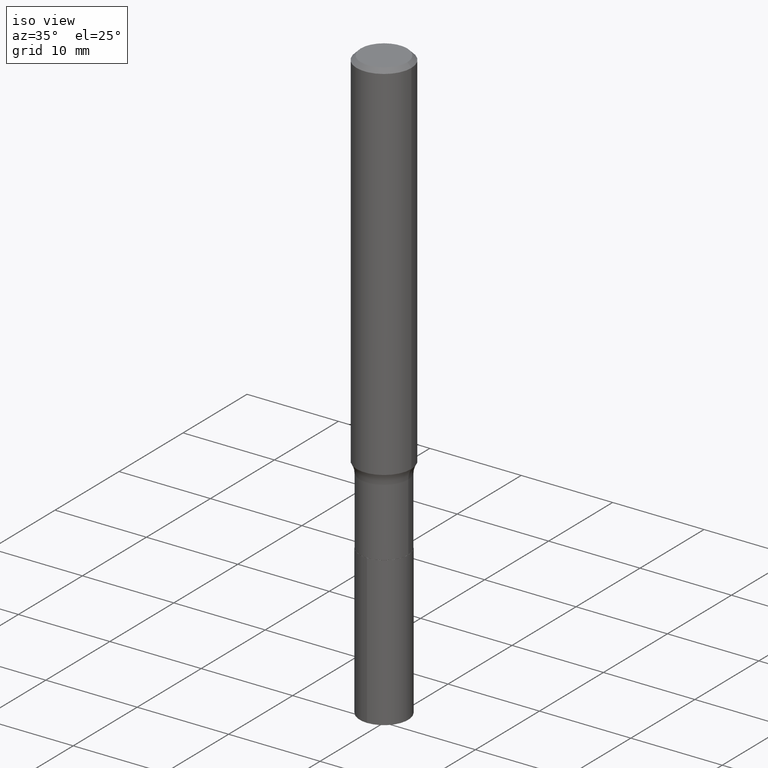
[diagram: clean part render]
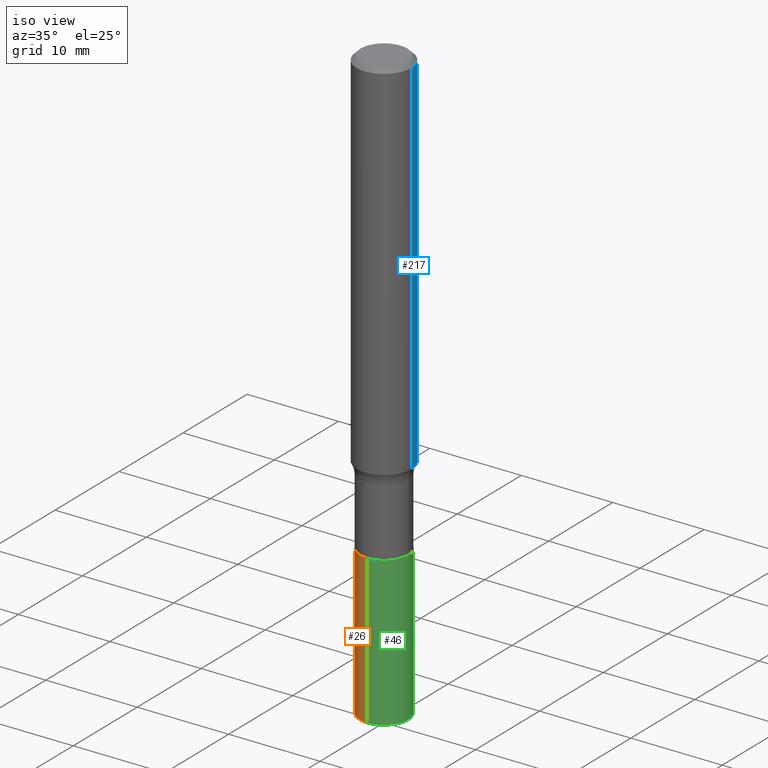
[diagram: same view with three faces highlighted in distinct colors, each labeled with its STEP entity id]
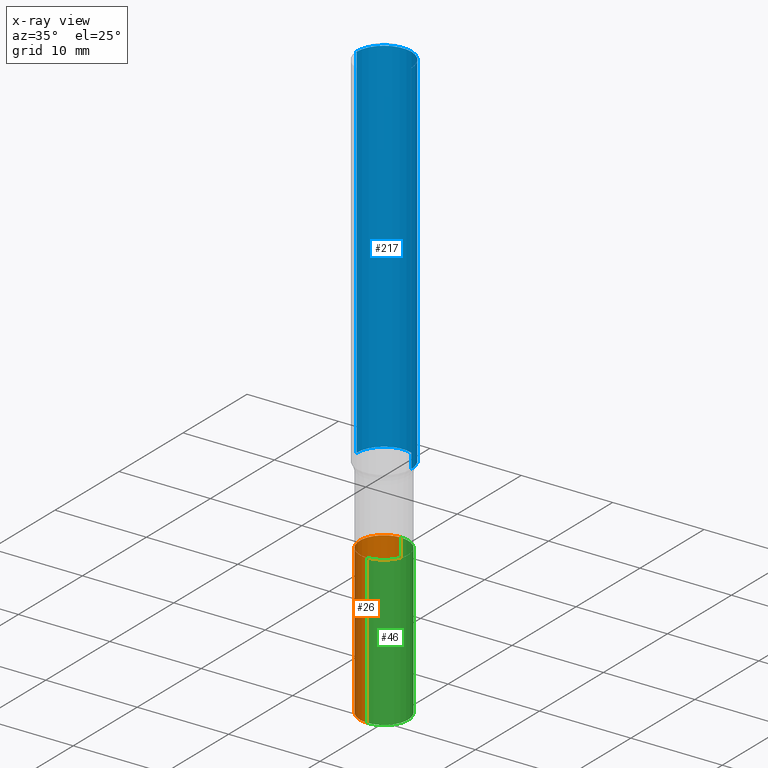
[diagram: x-ray of the same camera — body ghosted, the three highlighted faces saturated]
A machine part, iso view with three faces highlighted in distinct colors.
The next image is the same camera in x-ray (body ghosted, the three faces saturated) — at least one of them is partly hidden behind the body in this view.
Their STEP definitions:

[orange] entity #26 — the highlighted cylindrical surface (edge-blend (fillet) strip) has radius 2.6505 mm, axis along (-0, 0, 1).
#13 = DIRECTION ( 'NONE',  ( -2.445682234328960793E-29, 3.491175697593613777E-15, 1.000000000000000000 ) ) ;
#24 = CARTESIAN_POINT ( 'NONE',  ( 6.258336242776719159E-29, -8.934853672551297411E-15, -2.559100000000000374 ) ) ;
#26 = ADVANCED_FACE ( 'NONE', ( #50 ), #127, .T. ) ;
#42 = VERTEX_POINT ( 'NONE', #406 ) ;
#48 = AXIS2_PLACEMENT_3D ( 'NONE', #24, #170, #173 ) ;
#50 = FACE_OUTER_BOUND ( 'NONE', #279, .T. ) ;
#60 = AXIS2_PLACEMENT_3D ( 'NONE', #445, #13, #380 ) ;
#63 = EDGE_CURVE ( 'NONE', #349, #90, #375, .T. ) ;
#66 = CARTESIAN_POINT ( 'NONE',  ( 7.414513447657111734E-16, 0.1043499999999932953, -1.917100000000000470 ) ) ;
#90 = VERTEX_POINT ( 'NONE', #142 ) ;
#92 = ORIENTED_EDGE ( 'NONE', *, *, #262, .F. ) ;
#114 = ORIENTED_EDGE ( 'NONE', *, *, #371, .F. ) ;
#127 = CYLINDRICAL_SURFACE ( 'NONE', #301, 0.1043499999999999844 ) ;
#142 = CARTESIAN_POINT ( 'NONE',  ( -7.286721554164991048E-16, -0.1043500000000089217, -2.559099999999999930 ) ) ;
#170 = DIRECTION ( 'NONE',  ( -2.445682234328960793E-29, 3.491175697593613777E-15, 1.000000000000000000 ) ) ;
#173 = DIRECTION ( 'NONE',  ( -6.982962677686265922E-15, -1.000000000000000000, 5.235932905920965262E-15 ) ) ;
#195 = CARTESIAN_POINT ( 'NONE',  ( -7.286721554165148820E-16, -0.1043500000000066874, -1.917099999999999804 ) ) ;
#200 = ORIENTED_EDGE ( 'NONE', *, *, #414, .T. ) ;
#212 = LINE ( 'NONE', #243, #319 ) ;
#232 = CARTESIAN_POINT ( 'NONE',  ( 4.688208248337526170E-29, -6.693518874696195618E-15, -1.917100000000000248 ) ) ;
#243 = CARTESIAN_POINT ( 'NONE',  ( -7.286721554165148820E-16, -0.1043500000000066874, -1.917099999999999804 ) ) ;
#262 = EDGE_CURVE ( 'NONE', #42, #296, #272, .T. ) ;
#272 = CIRCLE ( 'NONE', #60, 0.1043499999999999844 ) ;
#279 = EDGE_LOOP ( 'NONE', ( #114, #313, #200, #92 ) ) ;
#296 = VERTEX_POINT ( 'NONE', #195 ) ;
#301 = AXIS2_PLACEMENT_3D ( 'NONE', #232, #378, #446 ) ;
#313 = ORIENTED_EDGE ( 'NONE', *, *, #63, .T. ) ;
#319 = VECTOR ( 'NONE', #363, 39.37007874015748143 ) ;
#344 = CARTESIAN_POINT ( 'NONE',  ( 7.414513447657190620E-16, 0.1043499999999910610, -2.559100000000001263 ) ) ;
#349 = VERTEX_POINT ( 'NONE', #344 ) ;
#354 = LINE ( 'NONE', #66, #420 ) ;
#363 = DIRECTION ( 'NONE',  ( -2.445682234328960513E-29, 3.491175697593614171E-15, 1.000000000000000000 ) ) ;
#371 = EDGE_CURVE ( 'NONE', #349, #42, #354, .T. ) ;
#375 = CIRCLE ( 'NONE', #48, 0.1043499999999999844 ) ;
#378 = DIRECTION ( 'NONE',  ( -2.445682234328960793E-29, 3.491175697593613777E-15, 1.000000000000000000 ) ) ;
#380 = DIRECTION ( 'NONE',  ( -6.982962677686265922E-15, -1.000000000000000000, 2.617966452960482631E-15 ) ) ;
#406 = CARTESIAN_POINT ( 'NONE',  ( 7.414513447657269506E-16, 0.1043499999999932953, -1.917100000000000470 ) ) ;
#414 = EDGE_CURVE ( 'NONE', #90, #296, #212, .T. ) ;
#420 = VECTOR ( 'NONE', #468, 39.37007874015748143 ) ;
#445 = CARTESIAN_POINT ( 'NONE',  ( 4.688208248337526170E-29, -6.693518874696195618E-15, -1.917100000000000248 ) ) ;
#446 = DIRECTION ( 'NONE',  ( -6.982962677686265922E-15, -1.000000000000000000, 2.617966452960482631E-15 ) ) ;
#468 = DIRECTION ( 'NONE',  ( -2.445682234328960513E-29, 3.491175697593614171E-15, 1.000000000000000000 ) ) ;

[blue] entity #217 — the highlighted cylindrical surface (edge-blend (fillet) strip) has radius 2.9997 mm, axis along (-0, 0, 1).
#16 = DIRECTION ( 'NONE',  ( 1.000000000000000000, -6.982962677686270655E-15, 0.000000000000000000 ) ) ;
#47 = DIRECTION ( 'NONE',  ( -2.445468806185136877E-29, 3.491481338843145188E-15, 1.000000000000000000 ) ) ;
#61 = DIRECTION ( 'NONE',  ( 1.000000000000000000, -6.982962677686266711E-15, 4.876176775795936353E-29 ) ) ;
#70 = CARTESIAN_POINT ( 'NONE',  ( 0.1181000000000000799, -8.246878922347486570E-16, 5.758764772215004644E-30 ) ) ;
#78 = ORIENTED_EDGE ( 'NONE', *, *, #298, .T. ) ;
#80 = CIRCLE ( 'NONE', #118, 0.1181000000000001632 ) ;
#85 = ORIENTED_EDGE ( 'NONE', *, *, #429, .F. ) ;
#118 = AXIS2_PLACEMENT_3D ( 'NONE', #347, #447, #16 ) ;
#125 = CARTESIAN_POINT ( 'NONE',  ( 0.1180999999999999966, -8.865394841523547570E-16, -0.01771500000000010913 ) ) ;
#131 = CARTESIAN_POINT ( 'NONE',  ( 0.000000000000000000, 0.000000000000000000, 0.000000000000000000 ) ) ;
#141 = LINE ( 'NONE', #70, #302 ) ;
#153 = VERTEX_POINT ( 'NONE', #422 ) ;
#183 = AXIS2_PLACEMENT_3D ( 'NONE', #325, #463, #460 ) ;
#189 = VERTEX_POINT ( 'NONE', #387 ) ;
#194 = AXIS2_PLACEMENT_3D ( 'NONE', #131, #413, #61 ) ;
#206 = LINE ( 'NONE', #373, #442 ) ;
#217 = ADVANCED_FACE ( 'NONE', ( #314 ), #227, .T. ) ;
#227 = CYLINDRICAL_SURFACE ( 'NONE', #194, 0.1181000000000000799 ) ;
#252 = CARTESIAN_POINT ( 'NONE',  ( -0.1180999999999999966, -1.948223441102449784E-15, -0.01771500000000010913 ) ) ;
#298 = EDGE_CURVE ( 'NONE', #189, #153, #80, .T. ) ;
#299 = VERTEX_POINT ( 'NONE', #125 ) ;
#302 = VECTOR ( 'NONE', #423, 39.37007874015748143 ) ;
#314 = FACE_OUTER_BOUND ( 'NONE', #411, .T. ) ;
#325 = CARTESIAN_POINT ( 'NONE',  ( 4.332147990156995868E-31, -6.185159191760670395E-17, -0.01771500000000010913 ) ) ;
#347 = CARTESIAN_POINT ( 'NONE',  ( 3.861288921395363891E-29, -5.512897232152652130E-15, -1.578956522213369240 ) ) ;
#350 = EDGE_CURVE ( 'NONE', #153, #397, #206, .T. ) ;
#372 = ORIENTED_EDGE ( 'NONE', *, *, #433, .F. ) ;
#373 = CARTESIAN_POINT ( 'NONE',  ( -0.1181000000000000799, 8.391509709326788873E-16, -5.809262341591047988E-30 ) ) ;
#381 = ORIENTED_EDGE ( 'NONE', *, *, #350, .T. ) ;
#382 = CIRCLE ( 'NONE', #183, 0.1180999999999999966 ) ;
#387 = CARTESIAN_POINT ( 'NONE',  ( 0.1181000000000001909, -6.337585124387401970E-15, -1.578956522213369240 ) ) ;
#397 = VERTEX_POINT ( 'NONE', #252 ) ;
#411 = EDGE_LOOP ( 'NONE', ( #78, #381, #85, #372 ) ) ;
#413 = DIRECTION ( 'NONE',  ( -2.445468806185136597E-29, 3.491481338843145583E-15, 1.000000000000000000 ) ) ;
#422 = CARTESIAN_POINT ( 'NONE',  ( -0.1181000000000001909, -4.673746261219972355E-15, -1.578956522213369240 ) ) ;
#423 = DIRECTION ( 'NONE',  ( -2.445468806185136877E-29, 3.491481338843145188E-15, 1.000000000000000000 ) ) ;
#429 = EDGE_CURVE ( 'NONE', #299, #397, #382, .T. ) ;
#433 = EDGE_CURVE ( 'NONE', #189, #299, #141, .T. ) ;
#442 = VECTOR ( 'NONE', #47, 39.37007874015748143 ) ;
#447 = DIRECTION ( 'NONE',  ( -2.445468806185136597E-29, 3.491481338843145583E-15, 1.000000000000000000 ) ) ;
#460 = DIRECTION ( 'NONE',  ( 1.000000000000000000, -6.982962677686266711E-15, 0.000000000000000000 ) ) ;
#463 = DIRECTION ( 'NONE',  ( -2.445468806185136597E-29, 3.491481338843145583E-15, 1.000000000000000000 ) ) ;

[green] entity #46 — the highlighted cylindrical surface (edge-blend (fillet) strip) has radius 2.6505 mm, axis along (-0, 0, 1).
#17 = ORIENTED_EDGE ( 'NONE', *, *, #191, .T. ) ;
#28 = CIRCLE ( 'NONE', #151, 0.1043499999999999844 ) ;
#31 = CARTESIAN_POINT ( 'NONE',  ( 4.688208248337526170E-29, -6.693518874696195618E-15, -1.917100000000000248 ) ) ;
#42 = VERTEX_POINT ( 'NONE', #406 ) ;
#46 = ADVANCED_FACE ( 'NONE', ( #53 ), #308, .T. ) ;
#51 = DIRECTION ( 'NONE',  ( -6.982962677686265922E-15, -1.000000000000000000, 5.235932905920965262E-15 ) ) ;
#53 = FACE_OUTER_BOUND ( 'NONE', #367, .T. ) ;
#66 = CARTESIAN_POINT ( 'NONE',  ( 7.414513447657111734E-16, 0.1043499999999932953, -1.917100000000000470 ) ) ;
#84 = DIRECTION ( 'NONE',  ( -6.982962677686265922E-15, -1.000000000000000000, 2.617966452960482631E-15 ) ) ;
#90 = VERTEX_POINT ( 'NONE', #142 ) ;
#136 = AXIS2_PLACEMENT_3D ( 'NONE', #161, #282, #84 ) ;
#142 = CARTESIAN_POINT ( 'NONE',  ( -7.286721554164991048E-16, -0.1043500000000089217, -2.559099999999999930 ) ) ;
#151 = AXIS2_PLACEMENT_3D ( 'NONE', #236, #274, #51 ) ;
#161 = CARTESIAN_POINT ( 'NONE',  ( 4.688208248337526170E-29, -6.693518874696195618E-15, -1.917100000000000248 ) ) ;
#168 = ORIENTED_EDGE ( 'NONE', *, *, #371, .T. ) ;
#191 = EDGE_CURVE ( 'NONE', #90, #349, #28, .T. ) ;
#195 = CARTESIAN_POINT ( 'NONE',  ( -7.286721554165148820E-16, -0.1043500000000066874, -1.917099999999999804 ) ) ;
#210 = DIRECTION ( 'NONE',  ( -2.445682234328960793E-29, 3.491175697593613777E-15, 1.000000000000000000 ) ) ;
#212 = LINE ( 'NONE', #243, #319 ) ;
#214 = DIRECTION ( 'NONE',  ( -6.982962677686265922E-15, -1.000000000000000000, 2.617966452960482631E-15 ) ) ;
#224 = ORIENTED_EDGE ( 'NONE', *, *, #414, .F. ) ;
#236 = CARTESIAN_POINT ( 'NONE',  ( 6.258336242776719159E-29, -8.934853672551297411E-15, -2.559100000000000374 ) ) ;
#243 = CARTESIAN_POINT ( 'NONE',  ( -7.286721554165148820E-16, -0.1043500000000066874, -1.917099999999999804 ) ) ;
#274 = DIRECTION ( 'NONE',  ( -2.445682234328960793E-29, 3.491175697593613777E-15, 1.000000000000000000 ) ) ;
#282 = DIRECTION ( 'NONE',  ( -2.445682234328960793E-29, 3.491175697593613777E-15, 1.000000000000000000 ) ) ;
#294 = EDGE_CURVE ( 'NONE', #296, #42, #339, .T. ) ;
#296 = VERTEX_POINT ( 'NONE', #195 ) ;
#308 = CYLINDRICAL_SURFACE ( 'NONE', #317, 0.1043499999999999844 ) ;
#317 = AXIS2_PLACEMENT_3D ( 'NONE', #31, #210, #214 ) ;
#319 = VECTOR ( 'NONE', #363, 39.37007874015748143 ) ;
#339 = CIRCLE ( 'NONE', #136, 0.1043499999999999844 ) ;
#344 = CARTESIAN_POINT ( 'NONE',  ( 7.414513447657190620E-16, 0.1043499999999910610, -2.559100000000001263 ) ) ;
#349 = VERTEX_POINT ( 'NONE', #344 ) ;
#354 = LINE ( 'NONE', #66, #420 ) ;
#363 = DIRECTION ( 'NONE',  ( -2.445682234328960513E-29, 3.491175697593614171E-15, 1.000000000000000000 ) ) ;
#367 = EDGE_LOOP ( 'NONE', ( #17, #168, #403, #224 ) ) ;
#371 = EDGE_CURVE ( 'NONE', #349, #42, #354, .T. ) ;
#403 = ORIENTED_EDGE ( 'NONE', *, *, #294, .F. ) ;
#406 = CARTESIAN_POINT ( 'NONE',  ( 7.414513447657269506E-16, 0.1043499999999932953, -1.917100000000000470 ) ) ;
#414 = EDGE_CURVE ( 'NONE', #90, #296, #212, .T. ) ;
#420 = VECTOR ( 'NONE', #468, 39.37007874015748143 ) ;
#468 = DIRECTION ( 'NONE',  ( -2.445682234328960513E-29, 3.491175697593614171E-15, 1.000000000000000000 ) ) ;